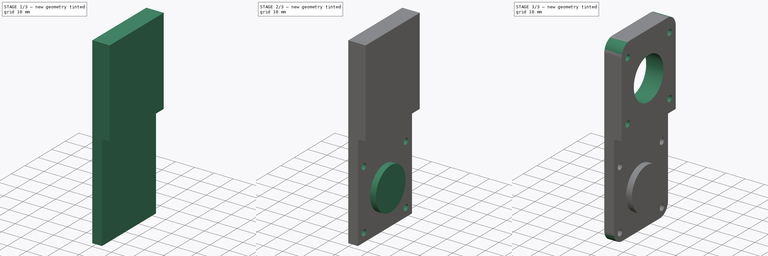
[diagram: build sequence overview — one tinted view per stage of 3, left to right]
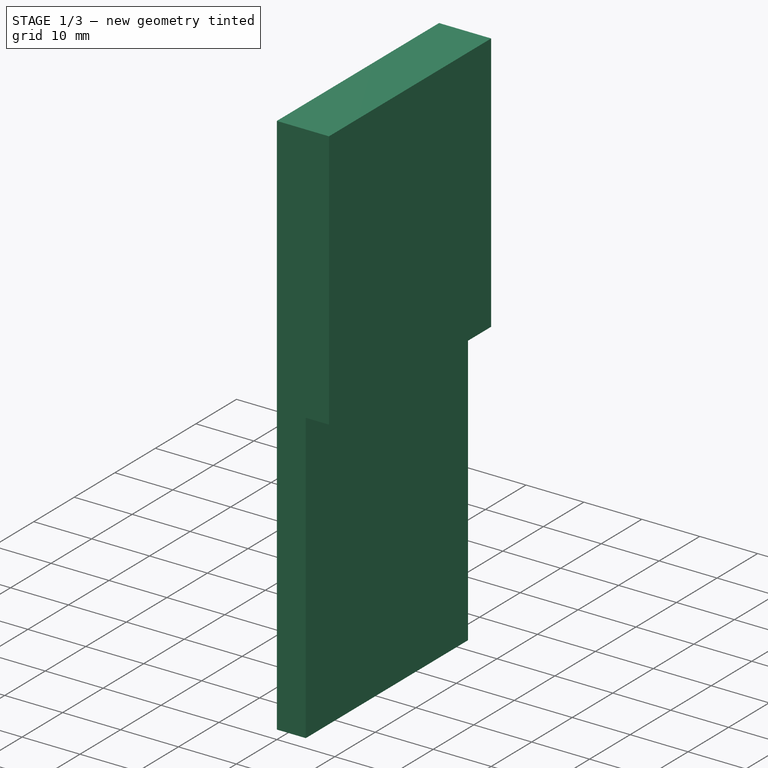
[diagram: stage 1 of 3 — iso view after this stage's code; geometry added in this stage tinted green]
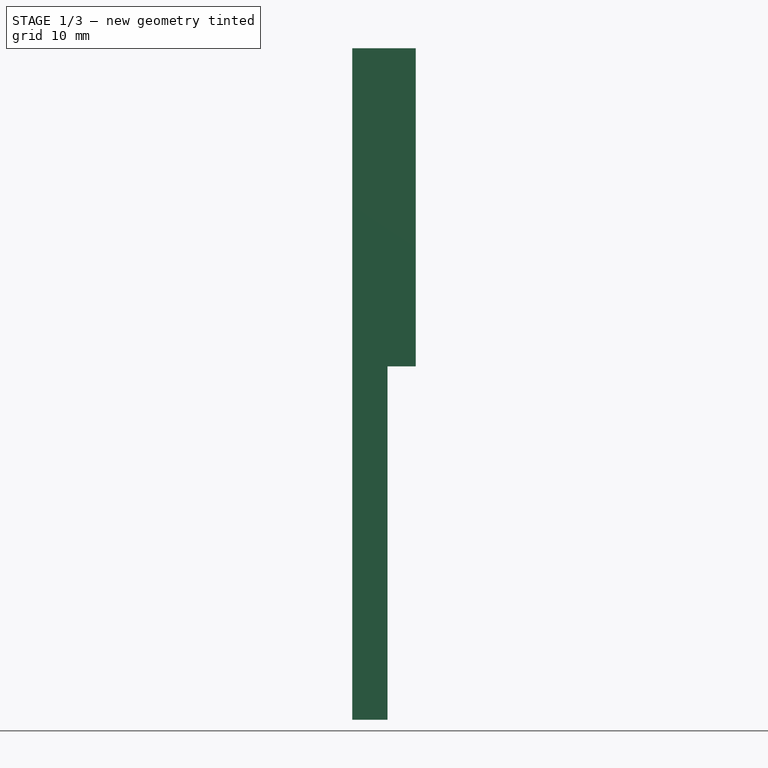
[diagram: stage 1 of 3 — front view after this stage's code; geometry added in this stage tinted green]
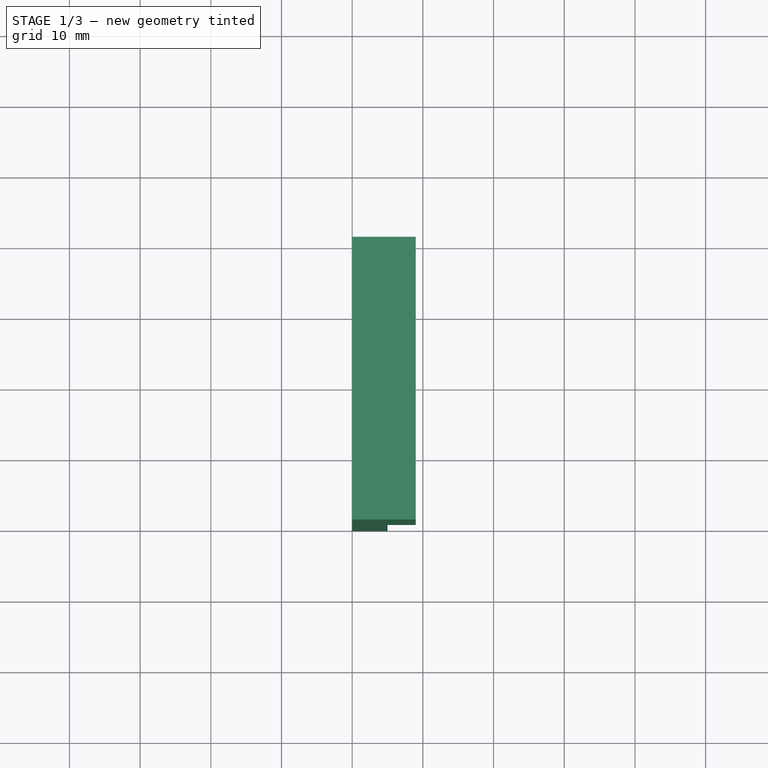
[diagram: stage 1 of 3 — top view after this stage's code; geometry added in this stage tinted green]
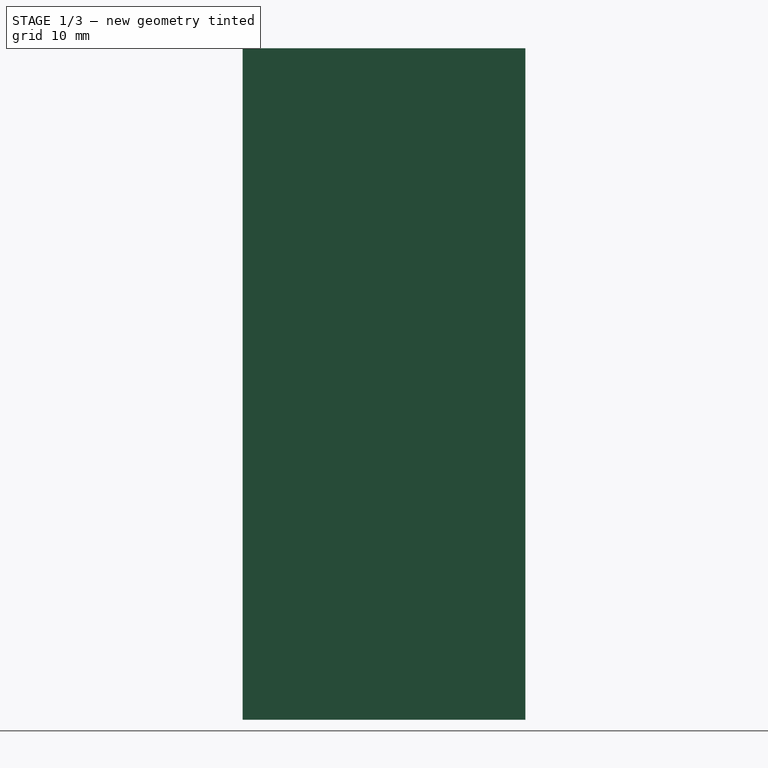
[diagram: stage 1 of 3 — right view after this stage's code; geometry added in this stage tinted green]
FCSTD DOCUMENT  (FreeCAD 0.20R29177 (Git))
Label: Motor
License: All rights reserved
LicenseURL: http://en.wikipedia.org/wiki/All_rights_reserved
objects: Sketcher::SketchObject×5, PartDesign::Pocket×3, PartDesign::Pad×2, PartDesign::Fillet×1, PartDesign::Body×1
note: 18 computed .brp shape members not serialized (recipe doc carries the construction recipe); baked Part::Feature solids carry a one-line shape summary decoded from their .brp

FEATURE [Sketcher::SketchObject] Sketch
  FullyConstrained = true
  MapMode = 5
  Placement = pos=(0,0,0) rot=(0.57735,0.57735,0.57735;2.0944rad)
  Support = -> [YZ_Plane]
  sketch-geometry (4):
    g0: LineSegment StartX=0 StartY=0 StartZ=0 EndX=40 EndY=0 EndZ=0
    g1: LineSegment StartX=40 StartY=0 StartZ=0 EndX=40 EndY=95 EndZ=0
    g2: LineSegment StartX=40 StartY=95 StartZ=0 EndX=0 EndY=95 EndZ=0
    g3: LineSegment StartX=0 StartY=95 StartZ=0 EndX=0 EndY=0 EndZ=0
  constraints (11):
    c: Coincident(g0,g1)
    c: Coincident(g1,g2)
    c: Coincident(g2,g3)
    c: Coincident(g3,g0)
    c: Horizontal(g0)
    c: Horizontal(g2)
    c: Vertical(g1)
    c: Vertical(g3)
    c: Coincident(g0,g-1)
    c: DistanceX(g0,g0) = 40
    c: DistanceY(g1,g1) = 95
FEATURE [PartDesign::Pad] Pad
  Direction = (1,-2e-16,3e-16)
  Length = 9
  Length2 = 10
  Placement = pos=(0,0,0) rot=(0.57735,0.57735,0.57735;2.0944rad)
  Profile = -> Sketch
  ReferenceAxis = -> Sketch [N_Axis]
  Type = 0
FEATURE [Sketcher::SketchObject] Sketch001
  FullyConstrained = true
  MapMode = 5
  Placement = pos=(9,-4e-15,3e-15) rot=(0.57735,0.57735,0.57735;2.0944rad)
  Support = -> [Pad]
  sketch-geometry (4):
    g0: LineSegment StartX=0 StartY=0 StartZ=0 EndX=40 EndY=0 EndZ=0
    g1: LineSegment StartX=40 StartY=0 StartZ=0 EndX=40 EndY=50 EndZ=0
    g2: LineSegment StartX=40 StartY=50 StartZ=0 EndX=0 EndY=50 EndZ=0
    g3: LineSegment StartX=0 StartY=50 StartZ=0 EndX=0 EndY=0 EndZ=0
  constraints (11):
    c: Coincident(g0,g1)
    c: Coincident(g1,g2)
    c: Coincident(g2,g3)
    c: Coincident(g3,g0)
    c: Horizontal(g0)
    c: Horizontal(g2)
    c: Vertical(g1)
    c: Vertical(g3)
    c: Coincident(g0,g-1)
    c: DistanceX(g0,g0) = 40
    c: DistanceY(g1,g1) = 50
FEATURE [PartDesign::Pocket] Pocket
  BaseFeature = -> Pad
  Direction = (-1,4e-16,-4e-16)
  Length = 4
  Length2 = 5
  Placement = pos=(0,0,0) rot=(0.57735,0.57735,0.57735;2.0944rad)
  Profile = -> Sketch001
  ReferenceAxis = -> Sketch001 [N_Axis]
  Type = 0
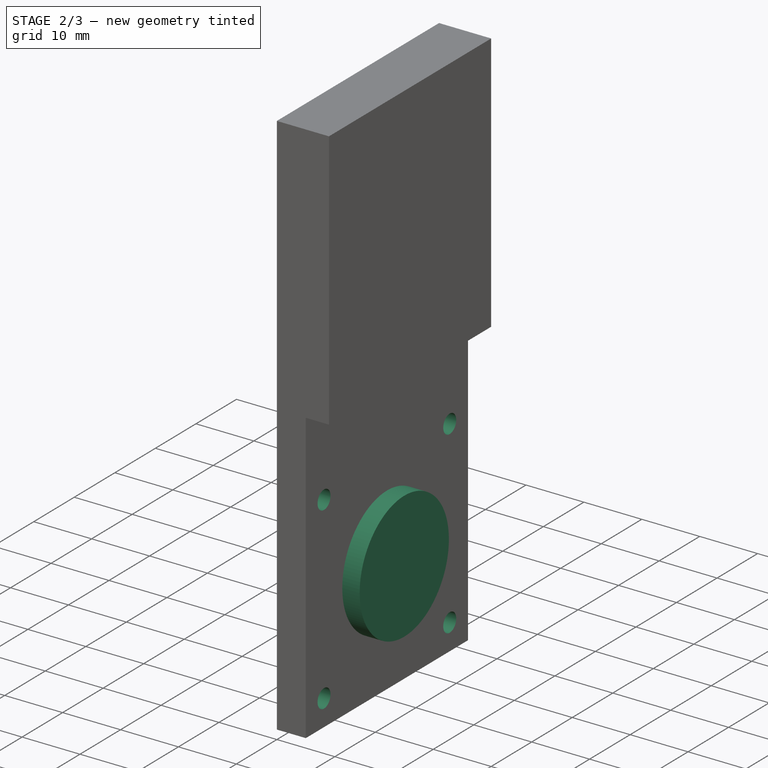
[diagram: stage 2 of 3 — iso view after this stage's code; geometry added in this stage tinted green]
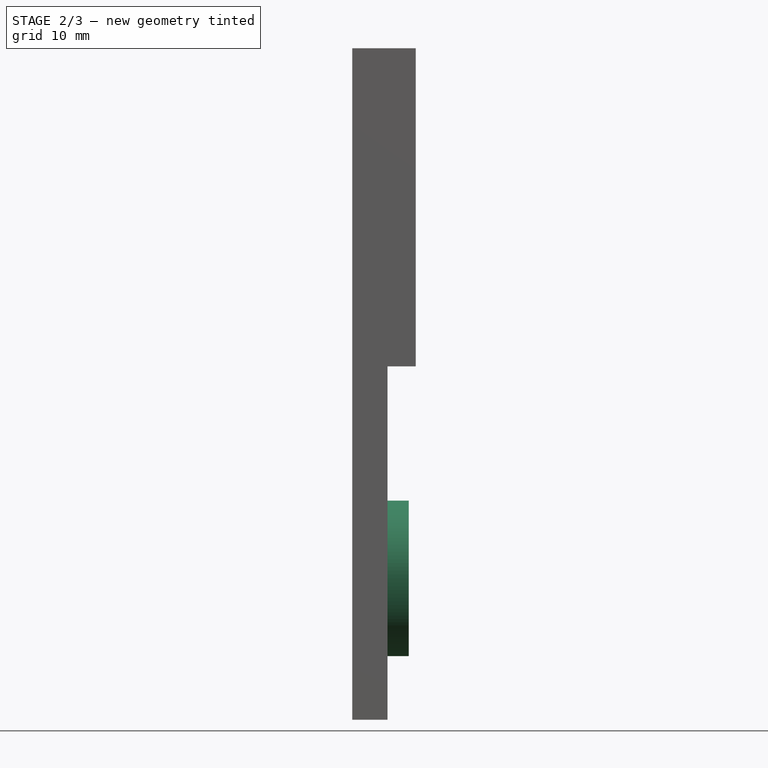
[diagram: stage 2 of 3 — front view after this stage's code; geometry added in this stage tinted green]
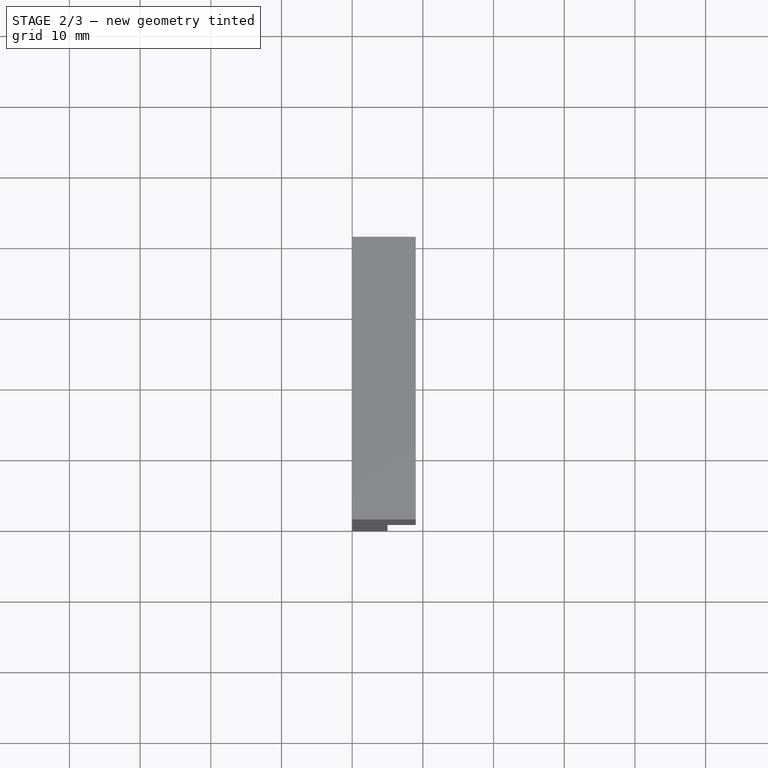
[diagram: stage 2 of 3 — top view after this stage's code; geometry added in this stage tinted green]
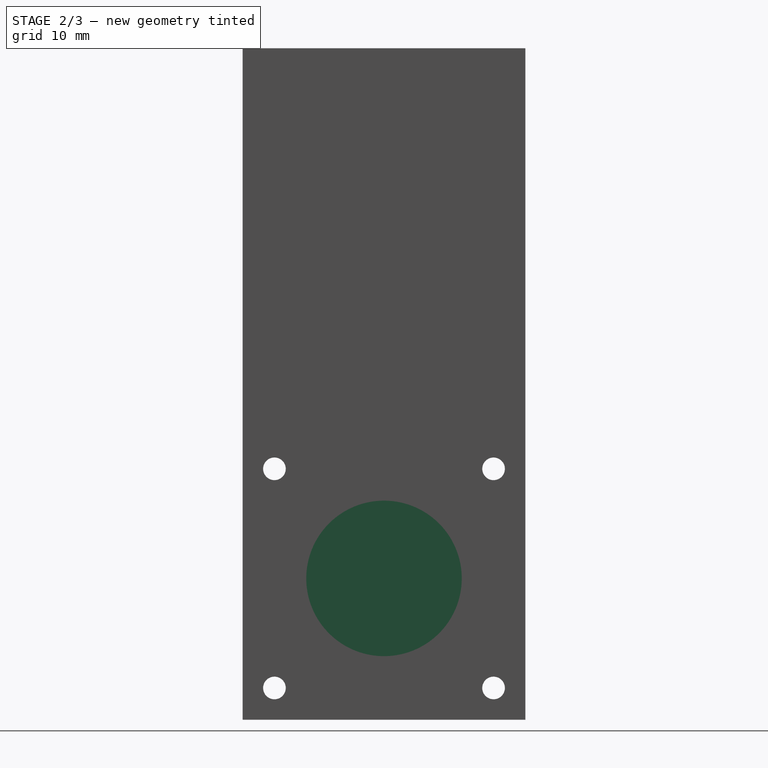
[diagram: stage 2 of 3 — right view after this stage's code; geometry added in this stage tinted green]
FEATURE [Sketcher::SketchObject] Sketch002
  FullyConstrained = true
  MapMode = 5
  Placement = pos=(5,-3.3e-15,2.7e-15) rot=(0.57735,0.57735,0.57735;2.0944rad)
  Support = -> [Pocket]
  sketch-geometry (3):
    g0: Circle CenterX=20 CenterY=20 CenterZ=0 NormalX=0 NormalY=0 NormalZ=1 AngleXU=0 Radius=11
    g1: LineSegment StartX=0 StartY=20 StartZ=0 EndX=40 EndY=20 EndZ=0
    g2: LineSegment StartX=20 StartY=0 StartZ=0 EndX=20 EndY=59.2789 EndZ=0
  constraints (9):
    c: Diameter(g0) = 22
    c: Distance(g0,g-2) = 20
    c: Distance(g0,g-1) = 20
    c: PointOnObject(g1,g-2)
    c: Horizontal(g1)
    c: PointOnObject(g2,g-1)
    c: Vertical(g2)
    c: Block(g1)
    c: Block(g2)
FEATURE [PartDesign::Pad] Pad001
  BaseFeature = -> Pocket
  Direction = (1,-9e-16,6e-16)
  Length = 3
  Length2 = 10
  Placement = pos=(0,0,0) rot=(0.57735,0.57735,0.57735;2.0944rad)
  Profile = -> Sketch002
  ReferenceAxis = -> Sketch002 [N_Axis]
  Type = 0
FEATURE [Sketcher::SketchObject] Sketch003
  FullyConstrained = true
  MapMode = 5
  Placement = pos=(5,-4.4e-15,3.2e-15) rot=(0.57735,0.57735,0.57735;2.0944rad)
  Support = -> [Pad001]
  sketch-geometry (6):
    g0: LineSegment StartX=0 StartY=20 StartZ=0 EndX=40.5012 EndY=20 EndZ=0
    g1: LineSegment StartX=20 StartY=0 StartZ=0 EndX=20 EndY=88.2724 EndZ=0
    g2: Circle CenterX=4.5 CenterY=35.5 CenterZ=0 NormalX=0 NormalY=0 NormalZ=1 AngleXU=0 Radius=1.6
    g3: Circle CenterX=35.5 CenterY=35.5 CenterZ=0 NormalX=0 NormalY=0 NormalZ=1 AngleXU=0 Radius=1.6
    g4: Circle CenterX=35.5 CenterY=4.5 CenterZ=0 NormalX=0 NormalY=0 NormalZ=1 AngleXU=0 Radius=1.6
    g5: Circle CenterX=4.5 CenterY=4.5 CenterZ=0 NormalX=0 NormalY=0 NormalZ=1 AngleXU=0 Radius=1.6
  constraints (20):
    c: PointOnObject(g0,g-2)
    c: Horizontal(g0)
    c: PointOnObject(g1,g-1)
    c: Vertical(g1)
    c: Distance(g1,g-1) = 20
    c: Distance(g0,g-1) = 20
    c: Block(g1)
    c: Block(g0)
    c: Distance(g3,g1) = 15.5
    c: Distance(g2,g1) = 15.5
    c: Distance(g2,g0) = 15.5
    c: Distance(g3,g0) = 15.5
    c: Distance(g4,g0) = 15.5
    c: Distance(g5,g0) = 15.5
    c: Distance(g5,g1) = 15.5
    c: Distance(g4,g1) = 15.5
    c: Diameter(g2) = 3.2
    c: Diameter(g3) = 3.2
    c: Diameter(g4) = 3.2
    c: Diameter(g5) = 3.2
FEATURE [PartDesign::Pocket] Pocket001
  BaseFeature = -> Pad001
  Direction = (-1,8e-16,-6e-16)
  Length = 8
  Length2 = 5
  Placement = pos=(0,0,0) rot=(0.57735,0.57735,0.57735;2.0944rad)
  Profile = -> Sketch003
  ReferenceAxis = -> Sketch003 [N_Axis]
  Type = 0
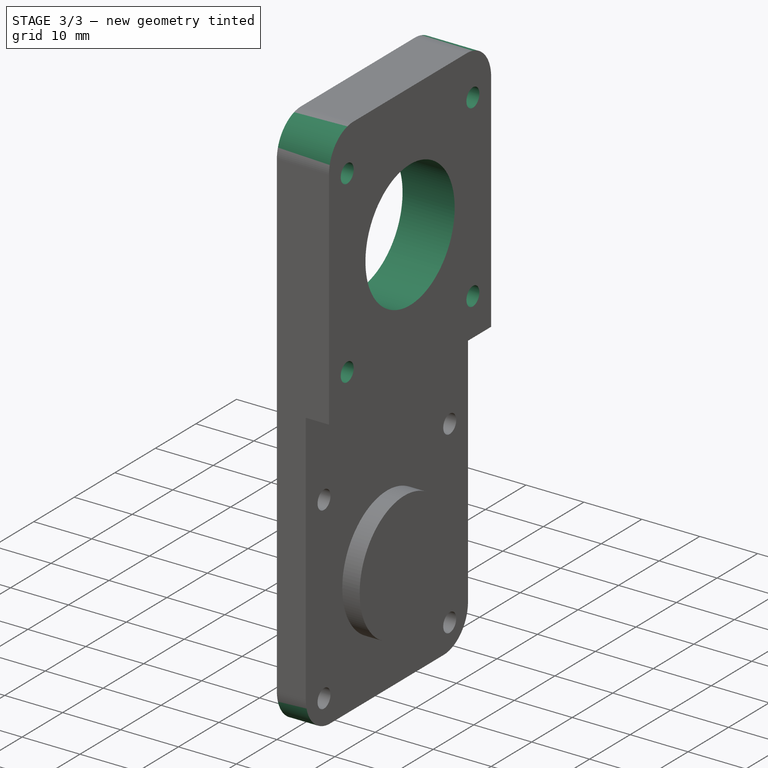
[diagram: stage 3 of 3 — iso view after this stage's code; geometry added in this stage tinted green]
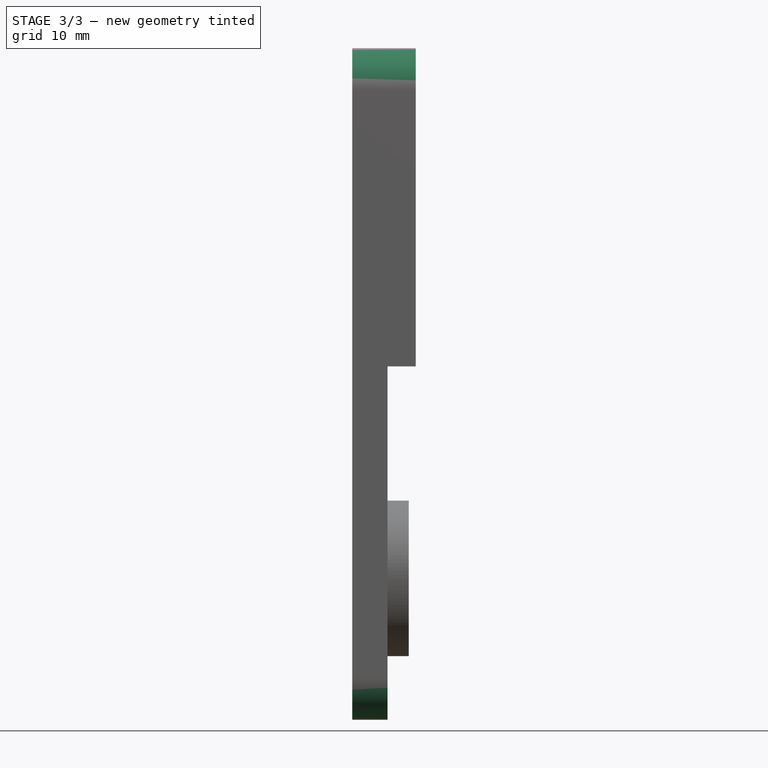
[diagram: stage 3 of 3 — front view after this stage's code; geometry added in this stage tinted green]
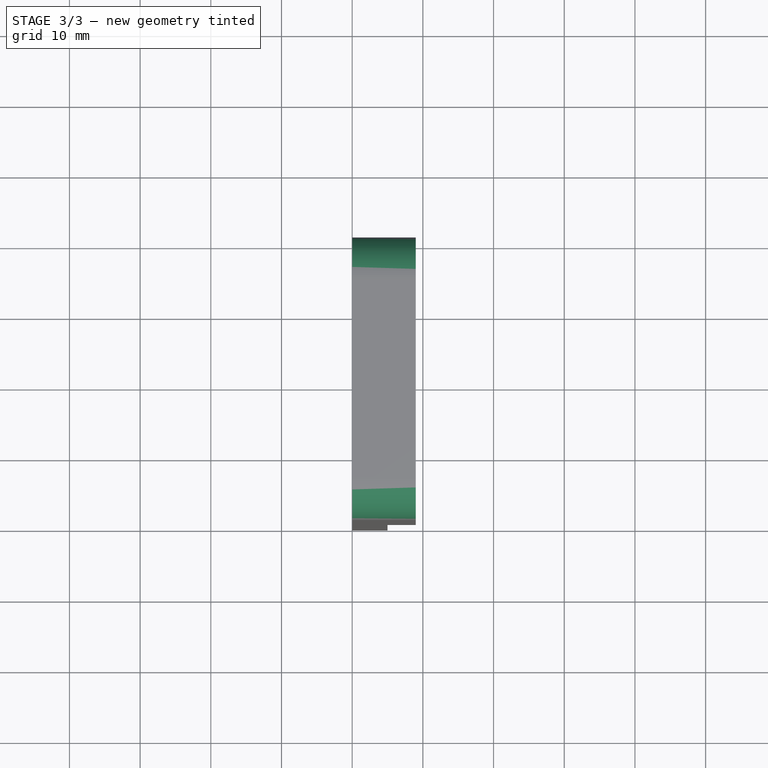
[diagram: stage 3 of 3 — top view after this stage's code; geometry added in this stage tinted green]
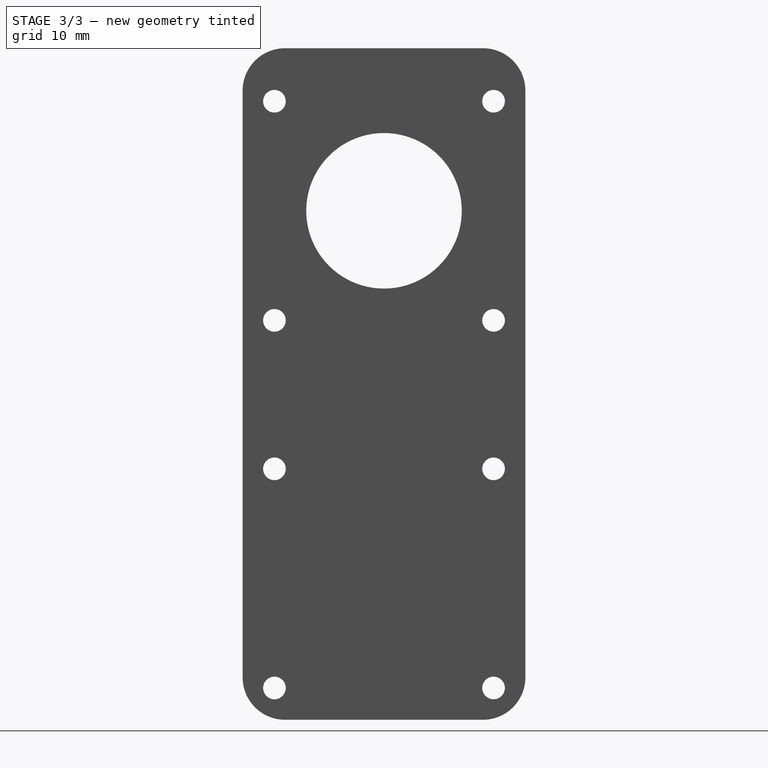
[diagram: stage 3 of 3 — right view after this stage's code; geometry added in this stage tinted green]
FEATURE [Sketcher::SketchObject] Sketch004
  FullyConstrained = false
  MapMode = 5
  Placement = pos=(9,-1e-14,6e-15) rot=(0.57735,0.57735,0.57735;2.0944rad)
  Support = -> [Pocket001]
  sketch-geometry (7):
    g0: LineSegment StartX=20 StartY=89.8993 StartZ=0 EndX=20 EndY=0 EndZ=0
    g1: LineSegment StartX=0 StartY=72 StartZ=0 EndX=39.6539 EndY=72 EndZ=0
    g2: Circle CenterX=20 CenterY=72 CenterZ=0 NormalX=0 NormalY=0 NormalZ=1 AngleXU=0 Radius=11
    g3: Circle CenterX=4.5 CenterY=87.5 CenterZ=0 NormalX=0 NormalY=0 NormalZ=1 AngleXU=0 Radius=1.6
    g4: Circle CenterX=35.5 CenterY=87.5 CenterZ=0 NormalX=0 NormalY=0 NormalZ=1 AngleXU=0 Radius=1.6
    g5: Circle CenterX=35.5 CenterY=56.5 CenterZ=0 NormalX=0 NormalY=0 NormalZ=1 AngleXU=0 Radius=1.6
    g6: Circle CenterX=4.5 CenterY=56.5 CenterZ=0 NormalX=0 NormalY=0 NormalZ=1 AngleXU=0 Radius=1.6
  constraints (21):
    c: PointOnObject(g0,g-1)
    c: Vertical(g0)
    c: Distance(g0,g-2) = 20
    c: PointOnObject(g1,g-2)
    c: Horizontal(g1)
    c: Block(g0)
    c: PointOnObject(g2,g0)
    c: Diameter(g2) = 22
    c: Block(g1)
    c: Distance(g4,g0) = 15.5
    c: Distance(g3,g0) = 15.5
    c: Distance(g3,g1) = 15.5
    c: Distance(g6,g1) = 15.5
    c: Distance(g5,g1) = 15.5
    c: Distance(g4,g1) = 15.5
    c: Distance(g5,g0) = 15.5
    c: Distance(g6,g0) = 15.5
    c: Diameter(g4) = 3.2
    c: Diameter(g3) = 3.2
    c: Diameter(g6) = 3.2
    c: Diameter(g5) = 3.2
FEATURE [PartDesign::Pocket] Pocket002
  BaseFeature = -> Pocket001
  Direction = (-1,1.1e-15,-7e-16)
  Length = 10
  Length2 = 5
  Placement = pos=(0,0,0) rot=(0.57735,0.57735,0.57735;2.0944rad)
  Profile = -> Sketch004
  ReferenceAxis = -> Sketch004 [N_Axis]
  Type = 0
FEATURE [PartDesign::Fillet] Fillet
  Base = -> Pocket002 [Edge30,Edge17,Edge2,Edge4]
  BaseFeature = -> Pocket002
  Placement = pos=(0,0,0) rot=(0.57735,0.57735,0.57735;2.0944rad)
  Radius = 6
  SupportTransform = false
  UseAllEdges = false
FEATURE [PartDesign::Body] Body
  Group = -> [Sketch,Pad,Sketch001,Pocket,Sketch002,Pad001,Sketch003,Pocket001,Sketch004,Pocket002,Fillet]
  Origin = -> Origin
  Tip = -> Fillet
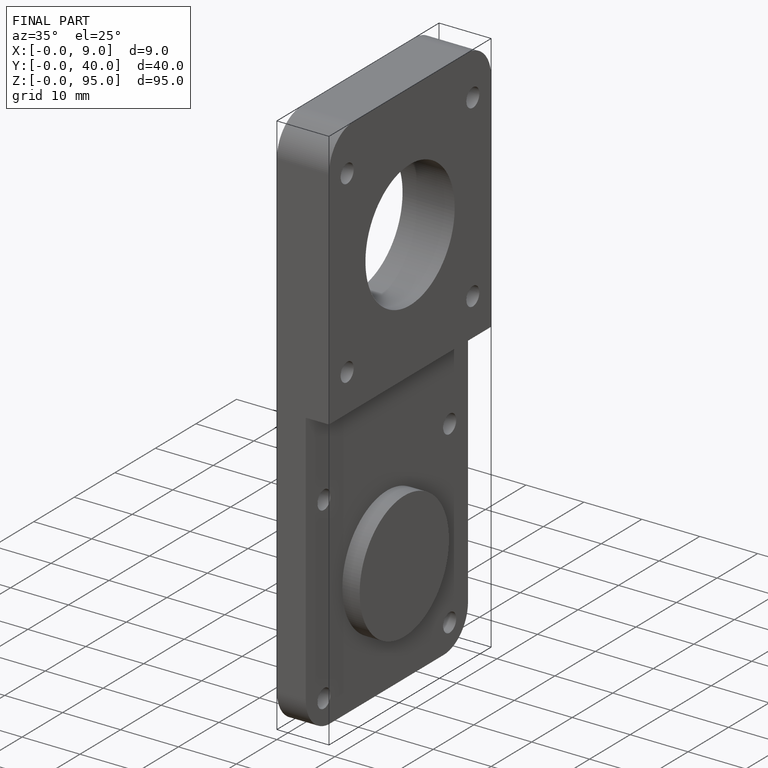
[diagram: finished part — iso view with bounding-box wireframe]
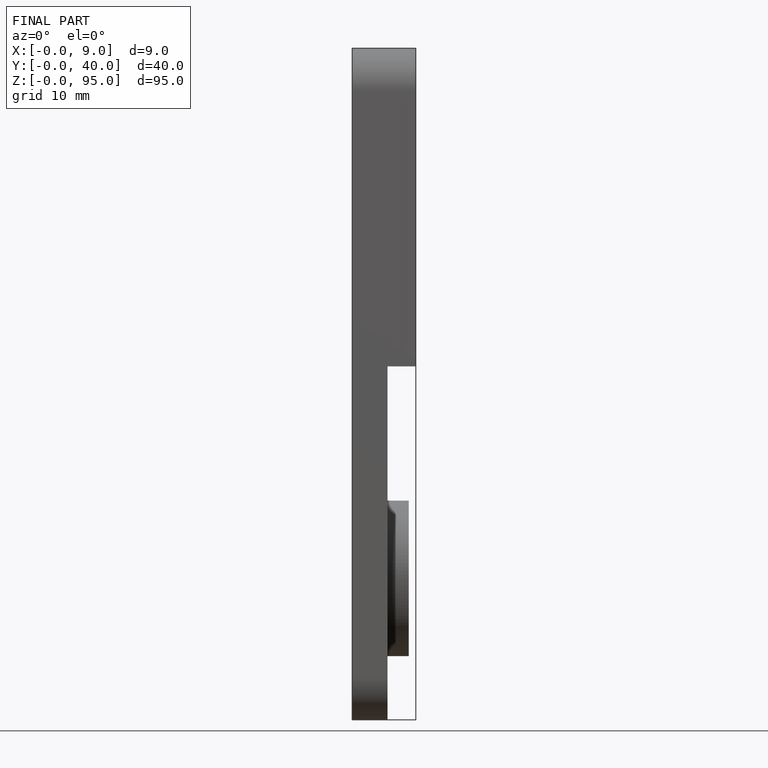
[diagram: finished part — front view with bounding-box wireframe]
